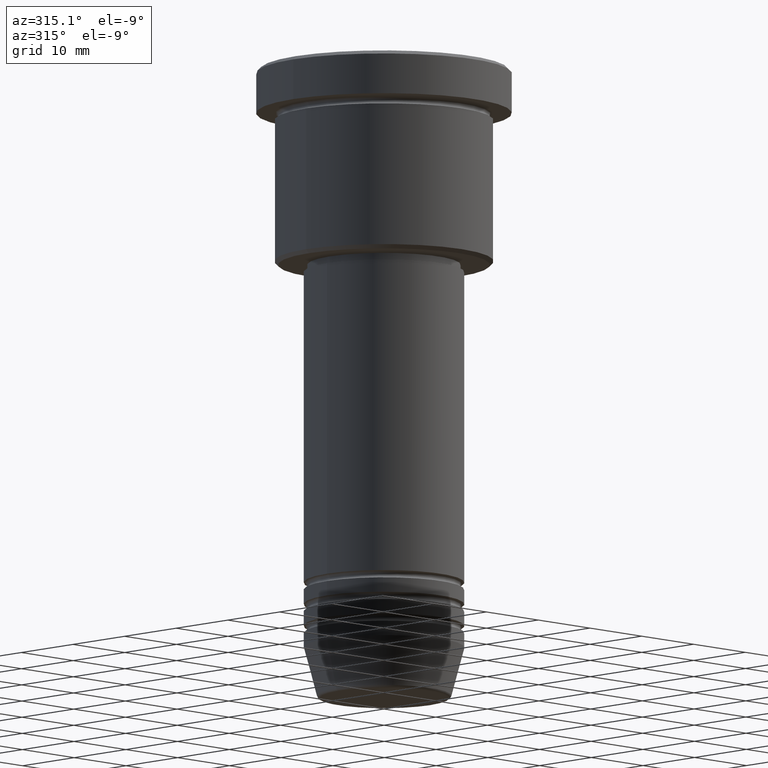
[diagram: clean part render]
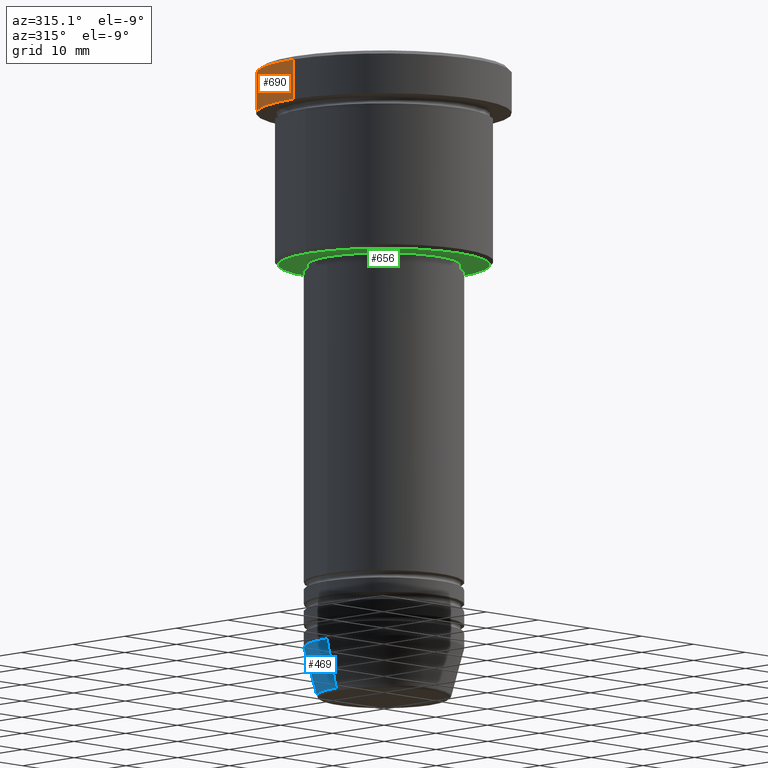
[diagram: same view with three faces highlighted in distinct colors, each labeled with its STEP entity id]
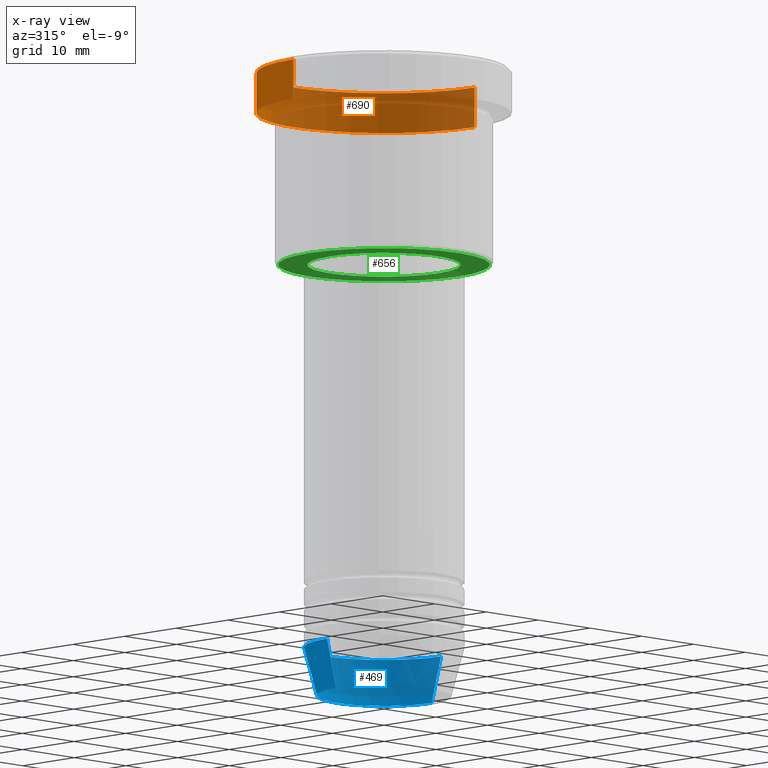
[diagram: x-ray of the same camera — body ghosted, the three highlighted faces saturated]
A machine part, auxiliary view with three faces highlighted in distinct colors.
The next image is the same camera in x-ray (body ghosted, the three faces saturated) — at least one of them is partly hidden behind the body in this view.
Their STEP definitions:

[orange] entity #690 — the highlighted cylindrical surface (partial cylindrical patch) has radius 17.5 mm, axis along (-0, -0, 1).
#10 = ORIENTED_EDGE ( 'NONE', *, *, #949, .F. ) ;
#76 = CARTESIAN_POINT ( 'NONE',  ( 17.50000000000000000, 0.000000000000000000, -5.999999999999995559 ) ) ;
#110 = DIRECTION ( 'NONE',  ( -0.000000000000000000, -0.000000000000000000, 1.000000000000000000 ) ) ;
#122 = CIRCLE ( 'NONE', #787, 17.50000000000000000 ) ;
#127 = CYLINDRICAL_SURFACE ( 'NONE', #868, 17.50000000000000000 ) ;
#139 = CARTESIAN_POINT ( 'NONE',  ( 0.000000000000000000, 0.000000000000000000, 0.000000000000000000 ) ) ;
#202 = CARTESIAN_POINT ( 'NONE',  ( -17.50000000000000000, 2.143131898507868248E-15, -5.999999999999995559 ) ) ;
#222 = FACE_OUTER_BOUND ( 'NONE', #233, .T. ) ;
#232 = ORIENTED_EDGE ( 'NONE', *, *, #1087, .T. ) ;
#233 = EDGE_LOOP ( 'NONE', ( #518, #842, #232, #10 ) ) ;
#244 = CARTESIAN_POINT ( 'NONE',  ( -17.50000000000000000, 2.143131898507868248E-15, 0.000000000000000000 ) ) ;
#270 = LINE ( 'NONE', #244, #822 ) ;
#286 = CARTESIAN_POINT ( 'NONE',  ( 17.50000000000000000, 0.000000000000000000, -0.5000000000000143219 ) ) ;
#301 = DIRECTION ( 'NONE',  ( 0.000000000000000000, 0.000000000000000000, -1.000000000000000000 ) ) ;
#335 = DIRECTION ( 'NONE',  ( -0.000000000000000000, -0.000000000000000000, 1.000000000000000000 ) ) ;
#365 = CARTESIAN_POINT ( 'NONE',  ( 17.50000000000000000, 0.000000000000000000, 0.000000000000000000 ) ) ;
#400 = DIRECTION ( 'NONE',  ( 1.000000000000000000, 0.000000000000000000, 0.000000000000000000 ) ) ;
#412 = DIRECTION ( 'NONE',  ( -0.000000000000000000, -0.000000000000000000, 1.000000000000000000 ) ) ;
#465 = DIRECTION ( 'NONE',  ( -0.000000000000000000, -0.000000000000000000, 1.000000000000000000 ) ) ;
#518 = ORIENTED_EDGE ( 'NONE', *, *, #525, .T. ) ;
#520 = VERTEX_POINT ( 'NONE', #286 ) ;
#525 = EDGE_CURVE ( 'NONE', #847, #1050, #1152, .T. ) ;
#690 = ADVANCED_FACE ( 'NONE', ( #222 ), #127, .T. ) ;
#725 = LINE ( 'NONE', #365, #1112 ) ;
#732 = DIRECTION ( 'NONE',  ( 1.000000000000000000, 0.000000000000000000, 0.000000000000000000 ) ) ;
#777 = EDGE_CURVE ( 'NONE', #1050, #1059, #270, .T. ) ;
#787 = AXIS2_PLACEMENT_3D ( 'NONE', #1123, #301, #865 ) ;
#822 = VECTOR ( 'NONE', #335, 1000.000000000000000 ) ;
#842 = ORIENTED_EDGE ( 'NONE', *, *, #777, .T. ) ;
#847 = VERTEX_POINT ( 'NONE', #76 ) ;
#865 = DIRECTION ( 'NONE',  ( 1.000000000000000000, 0.000000000000000000, 0.000000000000000000 ) ) ;
#868 = AXIS2_PLACEMENT_3D ( 'NONE', #139, #412, #400 ) ;
#880 = CARTESIAN_POINT ( 'NONE',  ( -17.50000000000000000, 2.143131898507868248E-15, -0.5000000000000143219 ) ) ;
#926 = AXIS2_PLACEMENT_3D ( 'NONE', #1011, #110, #732 ) ;
#949 = EDGE_CURVE ( 'NONE', #847, #520, #725, .T. ) ;
#1011 = CARTESIAN_POINT ( 'NONE',  ( 0.000000000000000000, 0.000000000000000000, -5.999999999999995559 ) ) ;
#1050 = VERTEX_POINT ( 'NONE', #202 ) ;
#1059 = VERTEX_POINT ( 'NONE', #880 ) ;
#1087 = EDGE_CURVE ( 'NONE', #1059, #520, #122, .T. ) ;
#1112 = VECTOR ( 'NONE', #465, 1000.000000000000000 ) ;
#1123 = CARTESIAN_POINT ( 'NONE',  ( 0.000000000000000000, 0.000000000000000000, -0.5000000000000143219 ) ) ;
#1152 = CIRCLE ( 'NONE', #926, 17.50000000000000000 ) ;

[blue] entity #469 — the highlighted conical surface has half-angle 15 deg.
#19 = CARTESIAN_POINT ( 'NONE',  ( 0.000000000000000000, 0.000000000000000000, -79.99999999999998579 ) ) ;
#45 = CIRCLE ( 'NONE', #800, 9.223655072137187716 ) ;
#64 = EDGE_CURVE ( 'NONE', #883, #939, #428, .T. ) ;
#66 = VECTOR ( 'NONE', #91, 1000.000000000000000 ) ;
#91 = DIRECTION ( 'NONE',  ( 0.2588190451025213501, 0.000000000000000000, 0.9659258262890680902 ) ) ;
#93 = EDGE_CURVE ( 'NONE', #728, #883, #45, .T. ) ;
#105 = ORIENTED_EDGE ( 'NONE', *, *, #93, .T. ) ;
#114 = DIRECTION ( 'NONE',  ( 1.000000000000000000, 0.000000000000000000, 0.000000000000000000 ) ) ;
#174 = CARTESIAN_POINT ( 'NONE',  ( 11.00000000000000000, 0.000000000000000000, -79.99999999999998579 ) ) ;
#181 = FACE_OUTER_BOUND ( 'NONE', #593, .T. ) ;
#204 = ORIENTED_EDGE ( 'NONE', *, *, #303, .F. ) ;
#254 = AXIS2_PLACEMENT_3D ( 'NONE', #347, #708, #540 ) ;
#298 = VERTEX_POINT ( 'NONE', #1078 ) ;
#303 = EDGE_CURVE ( 'NONE', #728, #298, #613, .T. ) ;
#347 = CARTESIAN_POINT ( 'NONE',  ( 0.000000000000000000, 0.000000000000000000, -79.99999999999998579 ) ) ;
#394 = CIRCLE ( 'NONE', #1171, 11.00000000000000000 ) ;
#428 = LINE ( 'NONE', #700, #799 ) ;
#461 = DIRECTION ( 'NONE',  ( -0.000000000000000000, -0.000000000000000000, 1.000000000000000000 ) ) ;
#469 = ADVANCED_FACE ( 'NONE', ( #181 ), #945, .T. ) ;
#504 = CARTESIAN_POINT ( 'NONE',  ( 0.000000000000000000, 0.000000000000000000, -86.62940952255124216 ) ) ;
#540 = DIRECTION ( 'NONE',  ( 1.000000000000000000, 0.000000000000000000, 0.000000000000000000 ) ) ;
#592 = CARTESIAN_POINT ( 'NONE',  ( 9.223655072137187716, 0.000000000000000000, -86.62940952255124216 ) ) ;
#593 = EDGE_LOOP ( 'NONE', ( #105, #1104, #714, #204 ) ) ;
#598 = EDGE_CURVE ( 'NONE', #298, #939, #394, .T. ) ;
#613 = LINE ( 'NONE', #174, #66 ) ;
#700 = CARTESIAN_POINT ( 'NONE',  ( -11.00000000000000000, 1.347111479062088405E-15, -79.99999999999998579 ) ) ;
#708 = DIRECTION ( 'NONE',  ( -0.000000000000000000, -0.000000000000000000, 1.000000000000000000 ) ) ;
#714 = ORIENTED_EDGE ( 'NONE', *, *, #598, .F. ) ;
#728 = VERTEX_POINT ( 'NONE', #592 ) ;
#766 = DIRECTION ( 'NONE',  ( 1.000000000000000000, 0.000000000000000000, 0.000000000000000000 ) ) ;
#799 = VECTOR ( 'NONE', #987, 1000.000000000000000 ) ;
#800 = AXIS2_PLACEMENT_3D ( 'NONE', #504, #873, #766 ) ;
#846 = CARTESIAN_POINT ( 'NONE',  ( -11.00000000000000000, 1.347111479062088405E-15, -79.99999999999998579 ) ) ;
#873 = DIRECTION ( 'NONE',  ( -0.000000000000000000, -0.000000000000000000, 1.000000000000000000 ) ) ;
#883 = VERTEX_POINT ( 'NONE', #1160 ) ;
#939 = VERTEX_POINT ( 'NONE', #846 ) ;
#945 = CONICAL_SURFACE ( 'NONE', #254, 11.00000000000000000, 0.2617993877991500740 ) ;
#987 = DIRECTION ( 'NONE',  ( -0.2588190451025213501, 3.169619151431772337E-17, 0.9659258262890680902 ) ) ;
#1078 = CARTESIAN_POINT ( 'NONE',  ( 11.00000000000000000, 0.000000000000000000, -79.99999999999998579 ) ) ;
#1104 = ORIENTED_EDGE ( 'NONE', *, *, #64, .T. ) ;
#1160 = CARTESIAN_POINT ( 'NONE',  ( -9.223655072137187716, 1.238341722557647004E-15, -86.62940952255124216 ) ) ;
#1171 = AXIS2_PLACEMENT_3D ( 'NONE', #19, #461, #114 ) ;

[green] entity #656 — the highlighted planar face has unit normal (0, 0, -1).
#1 = CARTESIAN_POINT ( 'NONE',  ( 10.49999999999999822, 0.000000000000000000, -27.00000000000000000 ) ) ;
#6 = AXIS2_PLACEMENT_3D ( 'NONE', #1137, #1046, #62 ) ;
#38 = ORIENTED_EDGE ( 'NONE', *, *, #513, .T. ) ;
#41 = DIRECTION ( 'NONE',  ( 1.000000000000000000, 0.000000000000000000, 0.000000000000000000 ) ) ;
#62 = DIRECTION ( 'NONE',  ( -1.000000000000000000, 0.000000000000000000, 0.000000000000000000 ) ) ;
#118 = CIRCLE ( 'NONE', #626, 10.49999999999999822 ) ;
#145 = FACE_BOUND ( 'NONE', #220, .T. ) ;
#205 = AXIS2_PLACEMENT_3D ( 'NONE', #447, #795, #519 ) ;
#206 = AXIS2_PLACEMENT_3D ( 'NONE', #584, #1132, #673 ) ;
#220 = EDGE_LOOP ( 'NONE', ( #38, #1023 ) ) ;
#379 = EDGE_LOOP ( 'NONE', ( #424, #1166 ) ) ;
#384 = CARTESIAN_POINT ( 'NONE',  ( -10.49999999999999822, 1.285879139104720633E-15, -27.00000000000000000 ) ) ;
#399 = EDGE_CURVE ( 'NONE', #763, #919, #1150, .T. ) ;
#424 = ORIENTED_EDGE ( 'NONE', *, *, #399, .T. ) ;
#434 = CARTESIAN_POINT ( 'NONE',  ( 14.49999999999997868, 0.000000000000000000, -26.99999999999999645 ) ) ;
#447 = CARTESIAN_POINT ( 'NONE',  ( 0.000000000000000000, 0.000000000000000000, -26.99999999999999645 ) ) ;
#459 = CARTESIAN_POINT ( 'NONE',  ( -14.49999999999997868, 1.806354028742344224E-15, -26.99999999999999645 ) ) ;
#513 = EDGE_CURVE ( 'NONE', #941, #750, #118, .T. ) ;
#519 = DIRECTION ( 'NONE',  ( -1.000000000000000000, 0.000000000000000000, 0.000000000000000000 ) ) ;
#584 = CARTESIAN_POINT ( 'NONE',  ( 0.000000000000000000, 15.00000000000000000, -26.99999999999999645 ) ) ;
#626 = AXIS2_PLACEMENT_3D ( 'NONE', #746, #1024, #922 ) ;
#656 = ADVANCED_FACE ( 'NONE', ( #1151, #145 ), #1063, .T. ) ;
#673 = DIRECTION ( 'NONE',  ( -1.000000000000000000, 0.000000000000000000, -0.000000000000000000 ) ) ;
#704 = EDGE_CURVE ( 'NONE', #919, #763, #738, .T. ) ;
#736 = EDGE_CURVE ( 'NONE', #750, #941, #1079, .T. ) ;
#738 = CIRCLE ( 'NONE', #6, 14.49999999999997868 ) ;
#746 = CARTESIAN_POINT ( 'NONE',  ( 0.000000000000000000, 0.000000000000000000, -27.00000000000000000 ) ) ;
#750 = VERTEX_POINT ( 'NONE', #384 ) ;
#763 = VERTEX_POINT ( 'NONE', #434 ) ;
#795 = DIRECTION ( 'NONE',  ( 0.000000000000000000, 0.000000000000000000, -1.000000000000000000 ) ) ;
#859 = CARTESIAN_POINT ( 'NONE',  ( 0.000000000000000000, 0.000000000000000000, -27.00000000000000000 ) ) ;
#912 = AXIS2_PLACEMENT_3D ( 'NONE', #859, #976, #41 ) ;
#919 = VERTEX_POINT ( 'NONE', #459 ) ;
#922 = DIRECTION ( 'NONE',  ( 1.000000000000000000, 0.000000000000000000, 0.000000000000000000 ) ) ;
#941 = VERTEX_POINT ( 'NONE', #1 ) ;
#976 = DIRECTION ( 'NONE',  ( -0.000000000000000000, -0.000000000000000000, 1.000000000000000000 ) ) ;
#1023 = ORIENTED_EDGE ( 'NONE', *, *, #736, .T. ) ;
#1024 = DIRECTION ( 'NONE',  ( -0.000000000000000000, -0.000000000000000000, 1.000000000000000000 ) ) ;
#1046 = DIRECTION ( 'NONE',  ( 0.000000000000000000, 0.000000000000000000, -1.000000000000000000 ) ) ;
#1063 = PLANE ( 'NONE',  #206 ) ;
#1079 = CIRCLE ( 'NONE', #912, 10.49999999999999822 ) ;
#1132 = DIRECTION ( 'NONE',  ( 0.000000000000000000, 0.000000000000000000, -1.000000000000000000 ) ) ;
#1137 = CARTESIAN_POINT ( 'NONE',  ( 0.000000000000000000, 0.000000000000000000, -26.99999999999999645 ) ) ;
#1150 = CIRCLE ( 'NONE', #205, 14.49999999999997868 ) ;
#1151 = FACE_OUTER_BOUND ( 'NONE', #379, .T. ) ;
#1166 = ORIENTED_EDGE ( 'NONE', *, *, #704, .T. ) ;